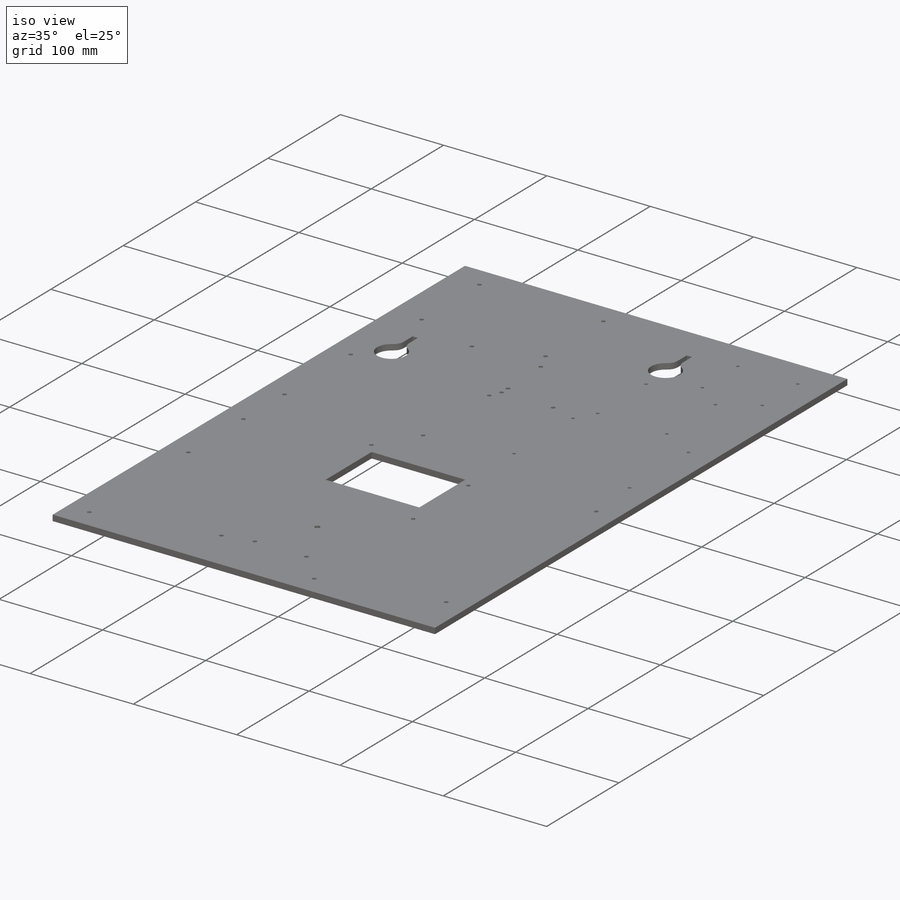
[diagram: iso view]
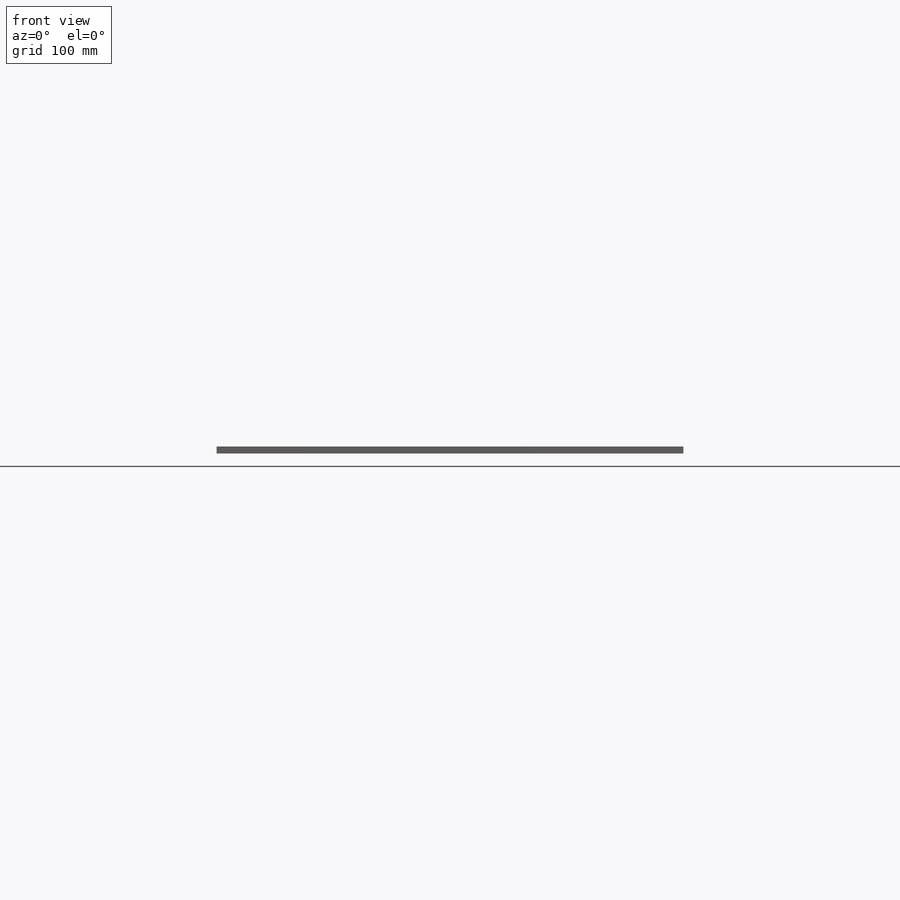
[diagram: front view]
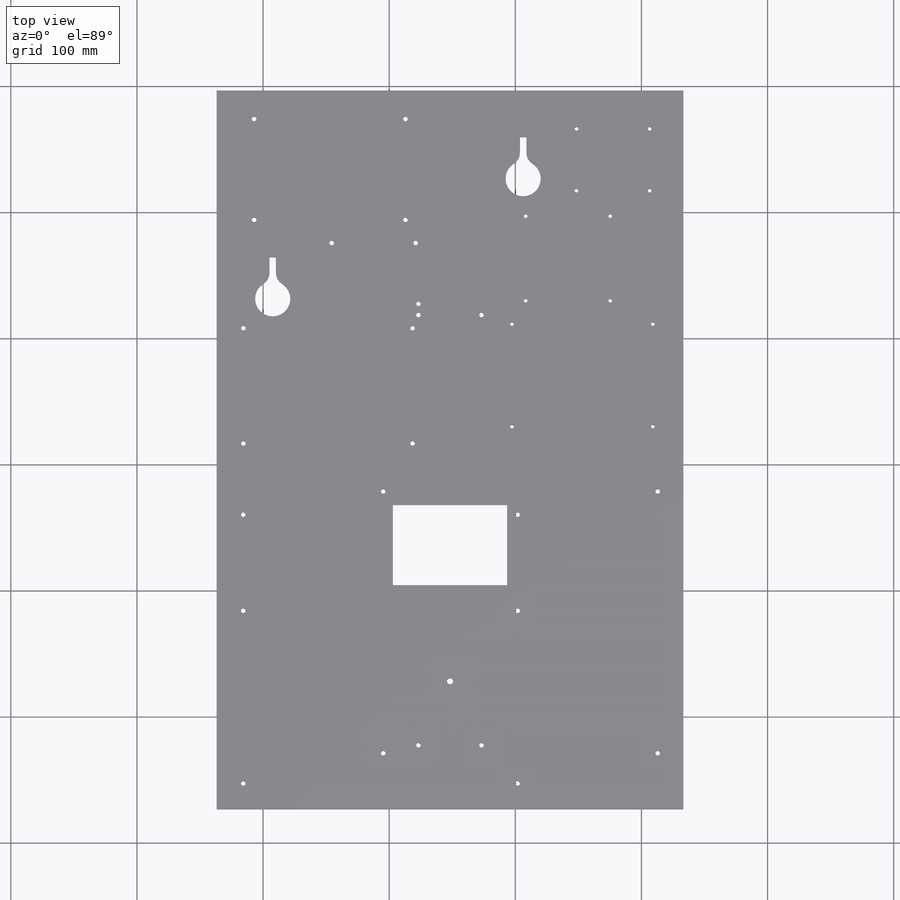
[diagram: top view]
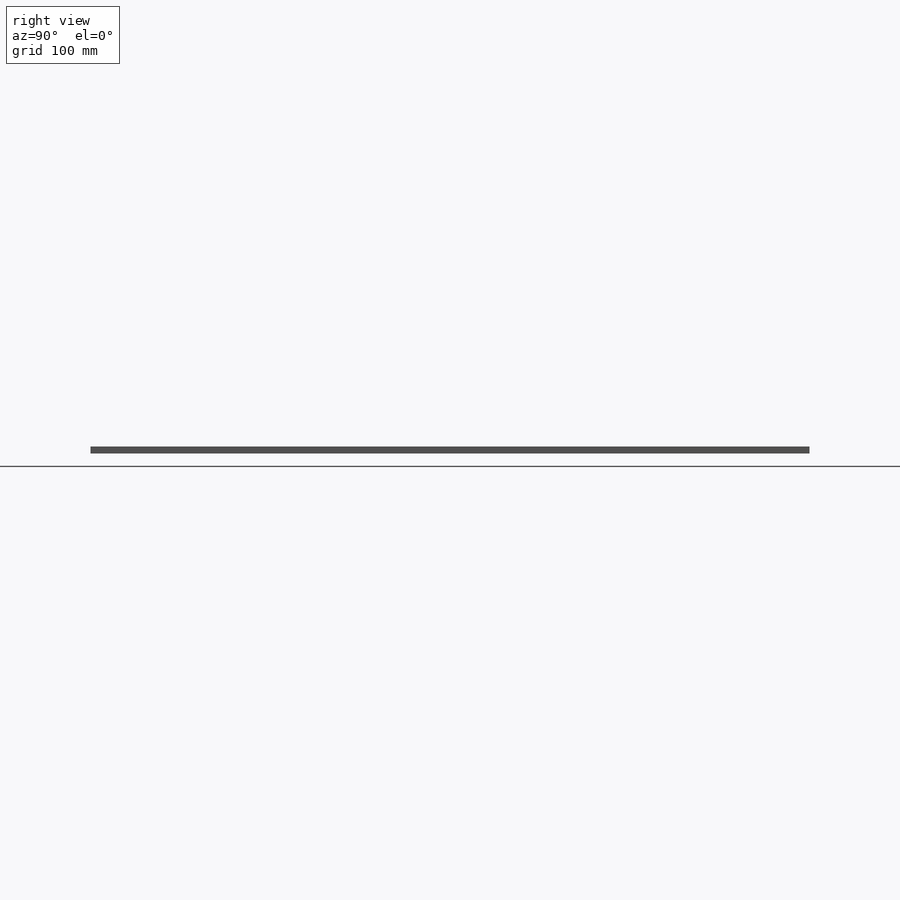
[diagram: right view]
SOLIDWORKS PART (.sldprt)
format: sldprt  version: not decoded by parser v0  size: 364,032 bytes
history: native  units: mm
features: sketch x4, cut_extrude x3, material x1, extrude x1 (+13 scaffold rows collapsed)
feature tree (22):
  scaffold x13  (default folders/planes/origin — collapsed)
  material  "Acrylic (Medium-high impact)"
  sketch  "Sketch1"  dims[c1.D1=2.794mm c1.D2=3.556mm c1.D10=3.556mm c1.D11=3.556mm c1.D13=3.556mm c1.D14=3.556mm c2.D1=557.3mm c2.D2=370.0mm c2.D3=~232.943336mm c2.D4=~790.243336mm c2.D5=370.0mm c2.D6=370.0mm c2.D7=~466.762809mm c2.D8=~466.762809mm c2.D9=557.3mm c2.D10=6.35mm c2.D11=120.8541mm c2.D12=157.822mm c2.D15=66.5988mm c2.D16=2.15mm c2.D17=48.244mm]
  extrude  "Boss-Extrude1"  Depth=5.6388mm
  sketch  "Sketch5"  dims[c1.D1=27.94mm c1.D3=10.0mm c1.D4=27.94mm c1.D5=10.0mm c1.D7=13.97mm c1.D13=4.7879mm c1.D2=19.05mm c1.D6=44.45mm c2.D7=158.75mm c2.D8=~32.78715mm c2.D9=~32.78715mm c2.D10=63.5mm c2.D11=127.0mm c2.D12=~12.359001mm c3.D7=165.1mm c3.D10=69.85mm c3.D14=101.6mm c3.D15=185.0mm c3.D16=5.08mm]
  cut_extrude  "Cut-Extrude1"  [1 undecoded]
  sketch  "Sketch6"  dims[D1=3.556mm D2=3.556mm D6=3.556mm D7=3.556mm D3=50.8mm D4=160.0mm D5=160.0mm D8=160.0mm D9=160.0mm D10=178.0mm]
  cut_extrude  "Cut-Extrude2"  [1 undecoded]
  sketch  "Sketch7"  dims[D1=177.8mm D2=139.7mm D3=139.7mm D4=63.5mm]
  cut_extrude  "Cut-Extrude3"  [1 undecoded]
decode coverage: 5 of 8 modeling features carry decoded parameters
note: ~ marks probable driven/reference dimensions
note: 3 parameter values undecoded
summary: no parameter record found for 3 features
note: suppression state not decoded; provenance and decode notes live in map.json
